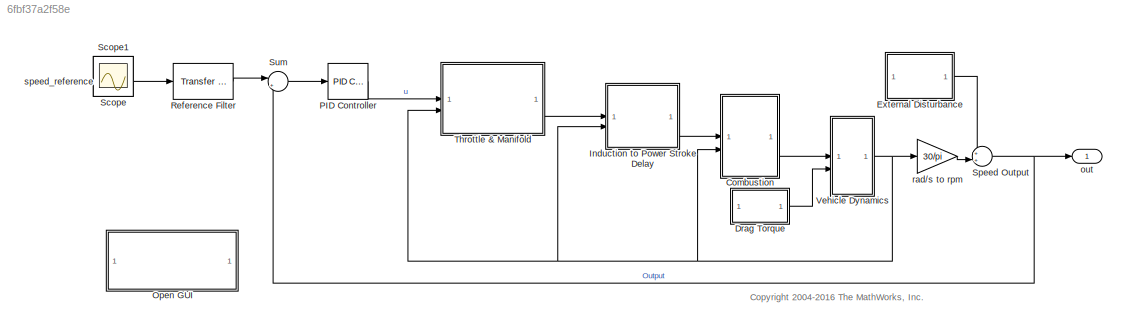
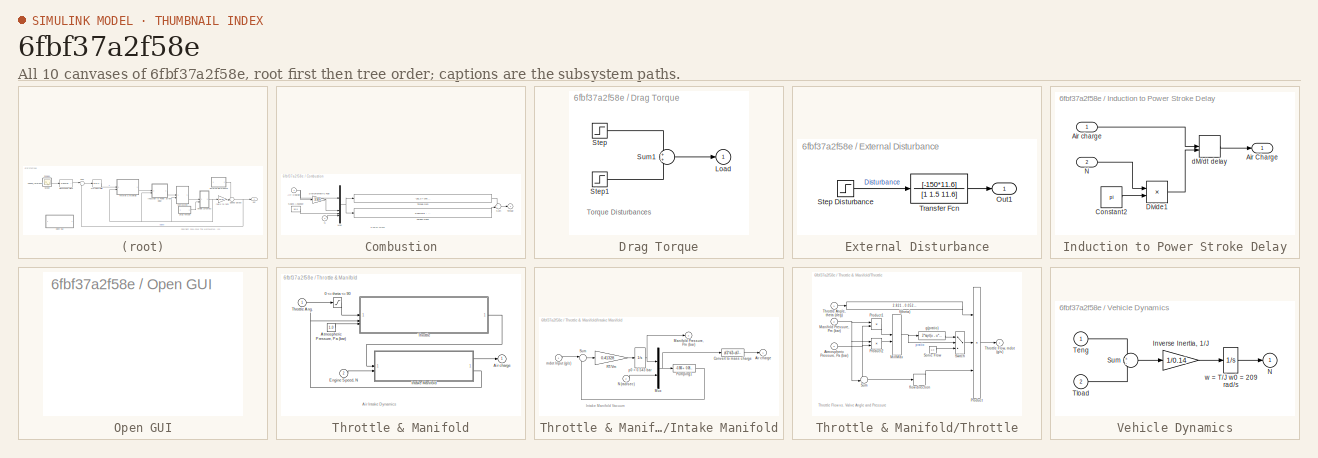
[diagram: thumbnail index - all 10 canvases of the model, root first then tree order]
MODEL slx_6fbf37a2f58e
KIND model
CONFIG AbsTol = auto
CONFIG EnableMultiTasking = on
CONFIG FixedStep = auto
CONFIG MaxStep = 0.01
CONFIG MinStep = auto
CONFIG RelTol = 1e-3
CONFIG SampleTimeConstraint = Unconstrained
CONFIG SolverName = ode45
CONFIG StartTime = 0
CONFIG StopTime = 15
WORKSPACE source: mxarray member
WORKSPACE p = [-7.82997288351e-05 0.181210895977 -0.072497134344 0.000486358314052 0.0361674637937]
BLOCK [SubSystem] Combustion
  NameLocation = top
  RTWMemSecDataConstants = Default
  RTWMemSecDataInternal = Default
  RTWMemSecDataParameters = Default
  RTWMemSecFuncExecute = Default
  RTWMemSecFuncInitTerm = Default
BLOCK [Inport] Combustion/Air Charge
BLOCK [Mux] Combustion/Mux
  DisplayOption = bar
BLOCK [Inport] Combustion/N
  Port = 2
BLOCK [Constant] Combustion/Spark Advance
  Value = 15.0
BLOCK [Gain] Combustion/Stoichiometric Fuel
  Gain = 1/14.6
  OutDataTypeStr = Inherit: Same as input
  ParamDataTypeStr = Inherit: Same as input
  SaturateOnIntegerOverflow = on
BLOCK [Sum] Combustion/Sum
  InputSameDT = on
  OutDataTypeStr = Inherit: Same as first input
  SaturateOnIntegerOverflow = on
BLOCK [Outport] Combustion/Torque
  InitialOutput = 0
  VectorParamsAs1DForOutWhenUnconnected = off
BLOCK [Fcn] Combustion/Torque Gen
  Expr = -181.3 + 379.36*u[1] + 21.91*u[1]/u[2] - (0.85*u[1]*u[1])/(u[2]*u[2]) + 0.26*u[3] - 0.0028*u[3]*u[3]
BLOCK [Fcn] Combustion/Torque Gen2
  Expr = 0.027*u[4] - 0.000107*u[4]*u[4] + 0.00048*u[4]*u[3] + 2.55*u[3]*u[1] - 0.05*u[3]*u[3]*u[1]
BLOCK [SubSystem] Drag Torque
  RTWMemSecDataConstants = Default
  RTWMemSecDataInternal = Default
  RTWMemSecDataParameters = Default
  RTWMemSecFuncExecute = Default
  RTWMemSecFuncInitTerm = Default
BLOCK [Outport] Drag Torque/Load
  InitialOutput = 0
  VectorParamsAs1DForOutWhenUnconnected = off
BLOCK [Step] Drag Torque/Step
  After = 25
  Before = 25
  SampleTime = 0
  Time = 2
BLOCK [Step] Drag Torque/Step1
  After = 0
  SampleTime = 0
  Time = 8
BLOCK [Sum] Drag Torque/Sum1
  InputSameDT = on
  OutDataTypeStr = Inherit: Same as first input
  SaturateOnIntegerOverflow = on
BLOCK [SubSystem] External Disturbance
  RTWMemSecDataConstants = Default
  RTWMemSecDataInternal = Default
  RTWMemSecDataParameters = Default
  RTWMemSecFuncExecute = Default
  RTWMemSecFuncInitTerm = Default
BLOCK [Outport] External Disturbance/Out1
  VectorParamsAs1DForOutWhenUnconnected = off
BLOCK [Step] External Disturbance/Step Disturbance
  SampleTime = 0
  Time = 10
BLOCK [TransferFcn] External Disturbance/Transfer Fcn
  Denominator = [1 1.5 11.6]
  Numerator = [-150*11.6]
BLOCK [SubSystem] Induction to Power Stroke Delay
  RTWMemSecDataConstants = Default
  RTWMemSecDataInternal = Default
  RTWMemSecDataParameters = Default
  RTWMemSecFuncExecute = Default
  RTWMemSecFuncInitTerm = Default
BLOCK [Outport] Induction to Power Stroke Delay/Air Charge
  VectorParamsAs1DForOutWhenUnconnected = off
BLOCK [Inport] Induction to Power Stroke Delay/Air charge
BLOCK [Constant] Induction to Power Stroke Delay/Constant2
  Value = pi
BLOCK [Product] Induction to Power Stroke Delay/Divide1
  Inputs = /*
BLOCK [Inport] Induction to Power Stroke Delay/N
  Port = 2
BLOCK [VariableTransportDelay] Induction to Power Stroke Delay/dM//dt delay
  InitialOutput = 0.152231307101552
  MaximumDelay = 10
  PadeOrder = 2
  TransDelayFeedthrough = on
BLOCK [SubSystem] Open GUI
  OpenFcn = controlSystemDesigner('scdspeedctrl_project.mat');
  RTWMemSecDataConstants = Default
  RTWMemSecDataInternal = Default
  RTWMemSecDataParameters = Default
  RTWMemSecFuncExecute = Default
  RTWMemSecFuncInitTerm = Default
BLOCK [Reference] PID Controller  REF=slpidlib/PID Controller
  SourceBlock = slpidlib/PID Controller
  SourceType = PID 1dof
  Tag = PID1
BLOCK [Reference] Reference Filter  REF=simulink_extras/Additional
Linear/Transfer Fcn
(with initial outputs)
  SourceBlock = simulink_extras/Additional\nLinear/Transfer Fcn\n(with initial outputs)
  SourceType = Transfer Function with Initial Outputs
BLOCK [Scope] Scope
  Floating = off
  IOType = viewer
  NumInputPorts = 1
  ScopeSpecificationString = Simulink.scopes.TimeScopeBlockCfg('CurrentConfiguration', extmgr.ConfigurationSet(extmgr.Configuration('Core','General UI',true),extmgr.Configuration('Core','Source UI',true),extmgr.Configuration('Sources','WiredSimulink',true,'DataLoggingMaxPoints','7500','DataLoggingLimitDataPoints',true,'DataLoggingSaveFormat','Array','DataLoggingDecimation','1','DataLoggingDecimateData',true),extmgr.Configurat...<+892ch>
BLOCK [Scope] Scope1
  Floating = off
  IOType = viewer
  NumInputPorts = 1
  ScopeSpecificationString = Simulink.scopes.TimeScopeBlockCfg('CurrentConfiguration', extmgr.ConfigurationSet(extmgr.Configuration('Core','General UI',true),extmgr.Configuration('Core','Source UI',true),extmgr.Configuration('Sources','WiredSimulink',true,'DataLoggingVariableName','ScopeData1','DataLoggingMaxPoints','7500','DataLoggingLimitDataPoints',true,'DataLoggingSaveFormat','Array','DataLoggingDecimation','1','DataLoggi...<+1742ch>
BLOCK [Sum] Speed Output
  Inputs = ++|
BLOCK [Sum] Sum
  Inputs = |+-
BLOCK [SubSystem] Throttle & Manifold
  RTWMemSecDataConstants = Default
  RTWMemSecDataInternal = Default
  RTWMemSecDataParameters = Default
  RTWMemSecFuncExecute = Default
  RTWMemSecFuncInitTerm = Default
BLOCK [Saturate] Throttle & Manifold/0 <= theta <= 90
  LowerLimit = 0
  NameLocation = top
  UpperLimit = 90
BLOCK [Outport] Throttle & Manifold/Air charge
  InitialOutput = 0
  VectorParamsAs1DForOutWhenUnconnected = off
BLOCK [Constant] Throttle & Manifold/Atmospheric Pressure, Pa (bar)
  Value = 1.0
BLOCK [Inport] Throttle & Manifold/Engine Speed, N
  Port = 2
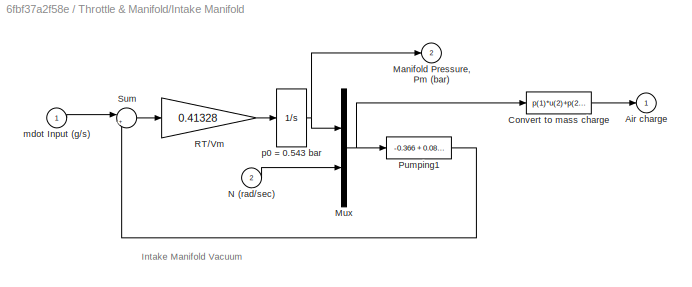
BLOCK [SubSystem] Throttle & Manifold/Intake Manifold
  RTWMemSecDataConstants = Default
  RTWMemSecDataInternal = Default
  RTWMemSecDataParameters = Default
  RTWMemSecFuncExecute = Default
  RTWMemSecFuncInitTerm = Default
BLOCK [Outport] Throttle & Manifold/Intake Manifold/Air charge
  InitialOutput = 0
  VectorParamsAs1DForOutWhenUnconnected = off
BLOCK [Fcn] Throttle & Manifold/Intake Manifold/Convert to mass charge
  Expr = p(1)*u(2)+p(2)*u(1)+p(3)*u(1)*u(1)+p(4)*u(1)*u(2)+p(5)
BLOCK [Outport] Throttle & Manifold/Intake Manifold/Manifold Pressure, Pm (bar)
  InitialOutput = 0
  Port = 2
  VectorParamsAs1DForOutWhenUnconnected = off
BLOCK [Mux] Throttle & Manifold/Intake Manifold/Mux
  DisplayOption = bar
  Inputs = 2
BLOCK [Inport] Throttle & Manifold/Intake Manifold/N (rad//sec)
  Port = 2
BLOCK [Fcn] Throttle & Manifold/Intake Manifold/Pumping1
  Expr = -0.366 + 0.08979*u[1]*u[2] - 0.0337*u[2]*u[1]*u[1] + 0.0001*u[1]*u[2]*u[2]
BLOCK [Gain] Throttle & Manifold/Intake Manifold/RT//Vm
  Gain = 0.41328
  OutDataTypeStr = Inherit: Same as input
  ParamDataTypeStr = Inherit: Same as input
  SaturateOnIntegerOverflow = on
BLOCK [Sum] Throttle & Manifold/Intake Manifold/Sum
  InputSameDT = on
  Inputs = |+-
  OutDataTypeStr = Inherit: Same as first input
  SaturateOnIntegerOverflow = on
BLOCK [Inport] Throttle & Manifold/Intake Manifold/mdot Input (g//s)
BLOCK [Integrator] Throttle & Manifold/Intake Manifold/p0 = 0.543 bar
  InitialCondition = 0.543634736225556
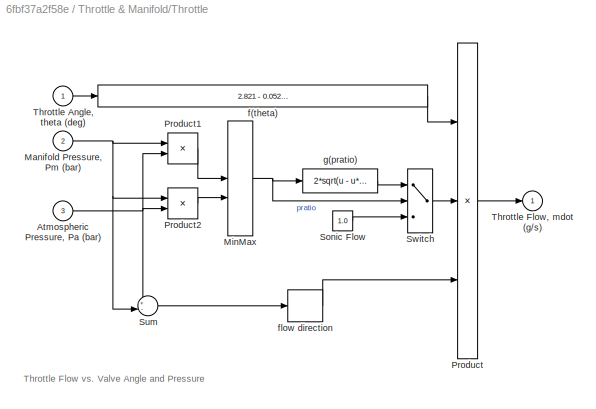
BLOCK [SubSystem] Throttle & Manifold/Throttle
  RTWMemSecDataConstants = Default
  RTWMemSecDataInternal = Default
  RTWMemSecDataParameters = Default
  RTWMemSecFuncExecute = Default
  RTWMemSecFuncInitTerm = Default
BLOCK [Inport] Throttle & Manifold/Throttle Ang.
BLOCK [Inport] Throttle & Manifold/Throttle/Atmospheric Pressure, Pa (bar) 
  Port = 3
BLOCK [Inport] Throttle & Manifold/Throttle/Manifold Pressure, Pm (bar)
  Port = 2
BLOCK [MinMax] Throttle & Manifold/Throttle/MinMax
  InputSameDT = on
  Inputs = 2
  SaturateOnIntegerOverflow = on
BLOCK [Product] Throttle & Manifold/Throttle/Product
  InputSameDT = on
  Inputs = 3
  OutDataTypeStr = Inherit: Same as first input
  RndMeth = Zero
  SaturateOnIntegerOverflow = on
BLOCK [Product] Throttle & Manifold/Throttle/Product1
  InputSameDT = on
  Inputs = */
  OutDataTypeStr = Inherit: Same as first input
  RndMeth = Zero
  SaturateOnIntegerOverflow = on
BLOCK [Product] Throttle & Manifold/Throttle/Product2
  InputSameDT = on
  Inputs = /*
  OutDataTypeStr = Inherit: Same as first input
  RndMeth = Zero
  SaturateOnIntegerOverflow = on
BLOCK [Constant] Throttle & Manifold/Throttle/Sonic Flow 
  Value = 1.0
BLOCK [Sum] Throttle & Manifold/Throttle/Sum
  InputSameDT = on
  Inputs = +-|
  OutDataTypeStr = Inherit: Same as first input
  SaturateOnIntegerOverflow = on
BLOCK [Switch] Throttle & Manifold/Throttle/Switch
  Threshold = 0.5
BLOCK [Inport] Throttle & Manifold/Throttle/Throttle Angle, theta (deg)
  NameLocation = top
BLOCK [Outport] Throttle & Manifold/Throttle/Throttle Flow, mdot (g//s)
  InitialOutput = 0
  VectorParamsAs1DForOutWhenUnconnected = off
BLOCK [Fcn] Throttle & Manifold/Throttle/f(theta)
  Expr = 2.821 - 0.05231*u + 0.10299*u*u - 0.00063*u*u*u
  NameLocation = top
BLOCK [Signum] Throttle & Manifold/Throttle/flow direction
BLOCK [Fcn] Throttle & Manifold/Throttle/g(pratio)
  Expr = 2*sqrt(u - u*u)
  NameLocation = top
BLOCK [SubSystem] Vehicle Dynamics
  RTWMemSecDataConstants = Default
  RTWMemSecDataInternal = Default
  RTWMemSecDataParameters = Default
  RTWMemSecFuncExecute = Default
  RTWMemSecFuncInitTerm = Default
BLOCK [Gain] Vehicle Dynamics/Inverse Inertia, 1//J
  Gain = 1/0.14
  OutDataTypeStr = Inherit: Same as input
  ParamDataTypeStr = Inherit: Same as input
  SaturateOnIntegerOverflow = on
BLOCK [Outport] Vehicle Dynamics/N
  InitialOutput = 0
  VectorParamsAs1DForOutWhenUnconnected = off
BLOCK [Sum] Vehicle Dynamics/Sum
  InputSameDT = on
  Inputs = +-
  OutDataTypeStr = Inherit: Same as first input
  SaturateOnIntegerOverflow = on
BLOCK [Inport] Vehicle Dynamics/Teng
BLOCK [Inport] Vehicle Dynamics/Tload
  Port = 2
BLOCK [Integrator] Vehicle Dynamics/w = T//J w0 = 209 rad//s
  InitialCondition = 209.4395102393211
BLOCK [Outport] out
BLOCK [Gain] rad//s to rpm
  Gain = 30/pi
  OutDataTypeStr = Inherit: Same as input
  ParamDataTypeStr = Inherit: Same as input
  SaturateOnIntegerOverflow = on
BLOCK [Inport] speed_reference
ANNOTATION (root): <copyright redacted>
ANNOTATION Combustion: Engine Torque
ANNOTATION Drag Torque: Torque Disturbances
ANNOTATION Throttle & Manifold: Air Intake Dynamics
ANNOTATION Throttle & Manifold/Intake Manifold: Intake Manifold Vacuum
ANNOTATION Throttle & Manifold/Throttle: Throttle Flow vs. Valve Angle and Pressure
NET Combustion/Air Charge:1 -> Combustion/Mux:1, Combustion/Stoichiometric Fuel:1
NET Combustion/Mux:1 -> Combustion/Torque Gen2:1, Combustion/Torque Gen:1
LINE Combustion/N:1 -> Combustion/Mux:4
LINE Combustion/Spark Advance:1 -> Combustion/Mux:3
LINE Combustion/Stoichiometric Fuel:1 -> Combustion/Mux:2
LINE Combustion/Sum:1 -> Combustion/Torque:1
LINE Combustion/Torque Gen2:1 -> Combustion/Sum:2
LINE Combustion/Torque Gen:1 -> Combustion/Sum:1
LINE Combustion:1 -> Vehicle Dynamics:1
LINE Drag Torque/Step1:1 -> Drag Torque/Sum1:2
LINE Drag Torque/Step:1 -> Drag Torque/Sum1:1
LINE Drag Torque/Sum1:1 -> Drag Torque/Load:1
LINE Drag Torque:1 -> Vehicle Dynamics:2
LINE External Disturbance/Step Disturbance:1 -> External Disturbance/Transfer Fcn:1
LINE External Disturbance/Transfer Fcn:1 -> External Disturbance/Out1:1
LINE External Disturbance:1 -> Speed Output:1
LINE Induction to Power Stroke Delay/Air charge:1 -> Induction to Power Stroke Delay/dM//dt delay:1
LINE Induction to Power Stroke Delay/Constant2:1 -> Induction to Power Stroke Delay/Divide1:2
LINE Induction to Power Stroke Delay/Divide1:1 -> Induction to Power Stroke Delay/dM//dt delay:2
LINE Induction to Power Stroke Delay/N:1 -> Induction to Power Stroke Delay/Divide1:1
LINE Induction to Power Stroke Delay/dM//dt delay:1 -> Induction to Power Stroke Delay/Air Charge:1
LINE Induction to Power Stroke Delay:1 -> Combustion:1
LINE PID Controller:1 -> Throttle & Manifold:1
LINE Reference Filter:1 -> Sum:1
NET Speed Output:1 -> Sum:2, out:1
LINE Sum:1 -> PID Controller:1
LINE Throttle & Manifold/0 <= theta <= 90:1 -> Throttle & Manifold/Throttle:1
LINE Throttle & Manifold/Atmospheric Pressure, Pa (bar):1 -> Throttle & Manifold/Throttle:3
LINE Throttle & Manifold/Engine Speed, N:1 -> Throttle & Manifold/Intake Manifold:2
LINE Throttle & Manifold/Intake Manifold/Convert to mass charge:1 -> Throttle & Manifold/Intake Manifold/Air charge:1
NET Throttle & Manifold/Intake Manifold/Mux:1 -> Throttle & Manifold/Intake Manifold/Convert to mass charge:1, Throttle & Manifold/Intake Manifold/Pumping1:1
LINE Throttle & Manifold/Intake Manifold/N (rad//sec):1 -> Throttle & Manifold/Intake Manifold/Mux:2
LINE Throttle & Manifold/Intake Manifold/Pumping1:1 -> Throttle & Manifold/Intake Manifold/Sum:2
LINE Throttle & Manifold/Intake Manifold/RT//Vm:1 -> Throttle & Manifold/Intake Manifold/p0 = 0.543 bar:1
LINE Throttle & Manifold/Intake Manifold/Sum:1 -> Throttle & Manifold/Intake Manifold/RT//Vm:1
LINE Throttle & Manifold/Intake Manifold/mdot Input (g//s):1 -> Throttle & Manifold/Intake Manifold/Sum:1
NET Throttle & Manifold/Intake Manifold/p0 = 0.543 bar:1 -> Throttle & Manifold/Intake Manifold/Manifold Pressure, Pm (bar):1, Throttle & Manifold/Intake Manifold/Mux:1
LINE Throttle & Manifold/Intake Manifold:1 -> Throttle & Manifold/Air charge:1
LINE Throttle & Manifold/Intake Manifold:2 -> Throttle & Manifold/Throttle:2
LINE Throttle & Manifold/Throttle Ang.:1 -> Throttle & Manifold/0 <= theta <= 90:1
NET Throttle & Manifold/Throttle/Atmospheric Pressure, Pa (bar) :1 -> Throttle & Manifold/Throttle/Product1:2, Throttle & Manifold/Throttle/Product2:2, Throttle & Manifold/Throttle/Sum:1
NET Throttle & Manifold/Throttle/Manifold Pressure, Pm (bar):1 -> Throttle & Manifold/Throttle/Product1:1, Throttle & Manifold/Throttle/Product2:1, Throttle & Manifold/Throttle/Sum:2
NET Throttle & Manifold/Throttle/MinMax:1 -> Throttle & Manifold/Throttle/Switch:2, Throttle & Manifold/Throttle/g(pratio):1
LINE Throttle & Manifold/Throttle/Product1:1 -> Throttle & Manifold/Throttle/MinMax:1
LINE Throttle & Manifold/Throttle/Product2:1 -> Throttle & Manifold/Throttle/MinMax:2
LINE Throttle & Manifold/Throttle/Product:1 -> Throttle & Manifold/Throttle/Throttle Flow, mdot (g//s):1
LINE Throttle & Manifold/Throttle/Sonic Flow :1 -> Throttle & Manifold/Throttle/Switch:3
LINE Throttle & Manifold/Throttle/Sum:1 -> Throttle & Manifold/Throttle/flow direction:1
LINE Throttle & Manifold/Throttle/Switch:1 -> Throttle & Manifold/Throttle/Product:2
LINE Throttle & Manifold/Throttle/Throttle Angle, theta (deg):1 -> Throttle & Manifold/Throttle/f(theta):1
LINE Throttle & Manifold/Throttle/f(theta):1 -> Throttle & Manifold/Throttle/Product:1
LINE Throttle & Manifold/Throttle/flow direction:1 -> Throttle & Manifold/Throttle/Product:3
LINE Throttle & Manifold/Throttle/g(pratio):1 -> Throttle & Manifold/Throttle/Switch:1
LINE Throttle & Manifold/Throttle:1 -> Throttle & Manifold/Intake Manifold:1
LINE Throttle & Manifold:1 -> Induction to Power Stroke Delay:1
LINE Vehicle Dynamics/Inverse Inertia, 1//J:1 -> Vehicle Dynamics/w = T//J w0 = 209 rad//s:1
LINE Vehicle Dynamics/Sum:1 -> Vehicle Dynamics/Inverse Inertia, 1//J:1
LINE Vehicle Dynamics/Teng:1 -> Vehicle Dynamics/Sum:1
LINE Vehicle Dynamics/Tload:1 -> Vehicle Dynamics/Sum:2
LINE Vehicle Dynamics/w = T//J w0 = 209 rad//s:1 -> Vehicle Dynamics/N:1
NET Vehicle Dynamics:1 -> Combustion:2, Induction to Power Stroke Delay:2, Throttle & Manifold:2, rad//s to rpm:1
LINE rad//s to rpm:1 -> Speed Output:2
LINE speed_reference:1 -> Reference Filter:1
note: NET lines group one-source signal fan-out (src -> all destinations, sorted); 1:1 wires keep LINE
